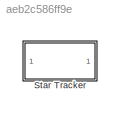
MODEL slx_aeb2c586ff9e
KIND library
CONFIG AbsTol = auto
CONFIG FixedStep = auto
CONFIG MaxStep = auto
CONFIG MinStep = auto
CONFIG RelTol = 1e-3
CONFIG SampleTimeConstraint = Unconstrained
CONFIG Solver = VariableStepAuto
CONFIG SolverMode = Auto
CONFIG SolverName = VariableStepAuto
CONFIG StartTime = 0.0
CONFIG StopTime = 10.0
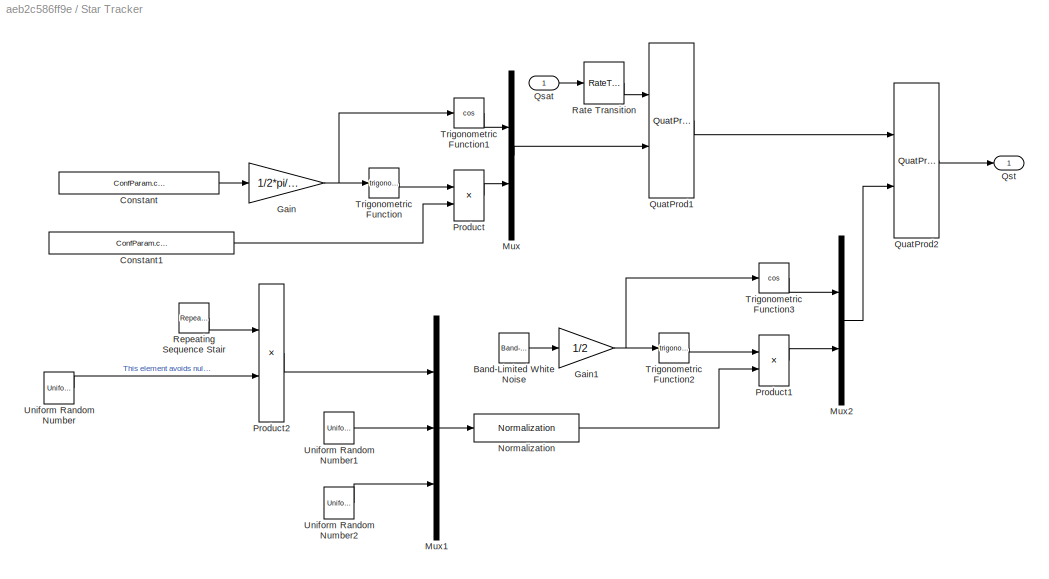
BLOCK [SubSystem] Star Tracker
  Ports = [1, 1]
  RequestExecContextInheritance = off
BLOCK [Reference] Star Tracker/Band-Limited White Noise  REF=simulink/Sources/Band-Limited
White Noise
  Cov = ConfParam.confStarTracker.NoisePower
  Ports = [0, 1]
  SourceBlock = simulink/Sources/Band-Limited\nWhite Noise
  SourceType = Band-Limited White Noise.
  Ts = 1/ConfParam.confStarTracker.frequency
  VectorParams1D = on
  seed = [23341]
BLOCK [Constant] Star Tracker/Constant
  SampleTime = 1/ConfParam.confStarTracker.frequency
  Value = ConfParam.confStarTracker.Bias
BLOCK [Constant] Star Tracker/Constant1
  SampleTime = 1/ConfParam.confStarTracker.frequency
  Value = ConfParam.confStarTracker.direction
BLOCK [Gain] Star Tracker/Gain
  Gain = 1/2*pi/180
  OutDataTypeStr = Inherit: Inherit via internal rule
  ParamDataTypeStr = Inherit: Inherit via internal rule
  SaturateOnIntegerOverflow = off
BLOCK [Gain] Star Tracker/Gain1
  Gain = 1/2
  OutDataTypeStr = Inherit: Inherit via internal rule
  ParamDataTypeStr = Inherit: Inherit via internal rule
  SaturateOnIntegerOverflow = off
BLOCK [Mux] Star Tracker/Mux
  DisplayOption = bar
  Inputs = 2
  Ports = [2, 1]
BLOCK [Mux] Star Tracker/Mux1
  DisplayOption = bar
  Inputs = 3
  Ports = [3, 1]
BLOCK [Mux] Star Tracker/Mux2
  DisplayOption = bar
  Inputs = 2
  Ports = [2, 1]
BLOCK [Reference] Star Tracker/Normalization  REF=Normalization/Normalization
  Ports = [1, 1]
  SourceBlock = Normalization/Normalization
  SourceType = SubSystem
BLOCK [Product] Star Tracker/Product
  InputSameDT = off
  OutDataTypeStr = Inherit: Inherit via internal rule
  Ports = [2, 1]
  RndMeth = Floor
  SaturateOnIntegerOverflow = off
BLOCK [Product] Star Tracker/Product1
  InputSameDT = off
  OutDataTypeStr = Inherit: Inherit via internal rule
  Ports = [2, 1]
  RndMeth = Floor
  SaturateOnIntegerOverflow = off
BLOCK [Product] Star Tracker/Product2
  InputSameDT = off
  OutDataTypeStr = Inherit: Inherit via internal rule
  Ports = [2, 1]
  RndMeth = Floor
  SaturateOnIntegerOverflow = off
BLOCK [Inport] Star Tracker/Qsat
  IconDisplay = Port number
BLOCK [Outport] Star Tracker/Qst
  IconDisplay = Port number
BLOCK [Reference] Star Tracker/QuatProd1  REF=Qprod/QuatProd1
  Ports = [2, 1]
  SourceBlock = Qprod/QuatProd1
  SourceType = SubSystem
BLOCK [Reference] Star Tracker/QuatProd2  REF=Qprod/QuatProd1
  Ports = [2, 1]
  SourceBlock = Qprod/QuatProd1
  SourceType = SubSystem
BLOCK [RateTransition] Star Tracker/Rate Transition
  OutPortSampleTime = 1/ConfParam.confStarTracker.frequency
  X0 = ConfParam.confStarTracker.InitQsat
BLOCK [Reference] Star Tracker/Repeating Sequence Stair  REF=simulink/Sources/Repeating
Sequence
Stair
  ConRadixGroup = Best Precision: Vector-wise
  LockScale = off
  OutDataType = fixdt(0,8)
  OutDataTypeStr = double
  OutMax = []
  OutMin = []
  OutScaling = 2^-12
  OutValues = [1 -1].'
  OutputDataTypeScalingMode = double
  Ports = [0, 1]
  SourceBlock = simulink/Sources/Repeating\nSequence\nStair
  SourceType = Repeating Sequence Stair
  tsamp = 1/ConfParam.confStarTracker.frequency
BLOCK [Trigonometry] Star Tracker/Trigonometric Function
  Ports = [1, 1]
BLOCK [Trigonometry] Star Tracker/Trigonometric Function1
  Operator = cos
  Ports = [1, 1]
BLOCK [Trigonometry] Star Tracker/Trigonometric Function2
  Ports = [1, 1]
BLOCK [Trigonometry] Star Tracker/Trigonometric Function3
  Operator = cos
  Ports = [1, 1]
BLOCK [UniformRandomNumber] Star Tracker/Uniform Random Number
  Maximum = 1.001
  Minimum = 0.001
  SampleTime = 1/ConfParam.confStarTracker.frequency
BLOCK [UniformRandomNumber] Star Tracker/Uniform Random Number1
  SampleTime = 1/ConfParam.confStarTracker.frequency
BLOCK [UniformRandomNumber] Star Tracker/Uniform Random Number2
  SampleTime = 1/ConfParam.confStarTracker.frequency
LINE Star Tracker/Band-Limited White Noise:1 -> Star Tracker/Gain1:1
LINE Star Tracker/Constant1:1 -> Star Tracker/Product:2
LINE Star Tracker/Constant:1 -> Star Tracker/Gain:1
NET Star Tracker/Gain1:1 -> Star Tracker/Trigonometric Function2:1, Star Tracker/Trigonometric Function3:1
NET Star Tracker/Gain:1 -> Star Tracker/Trigonometric Function1:1, Star Tracker/Trigonometric Function:1
LINE Star Tracker/Mux1:1 -> Star Tracker/Normalization:1
LINE Star Tracker/Mux2:1 -> Star Tracker/QuatProd2:2
LINE Star Tracker/Mux:1 -> Star Tracker/QuatProd1:2
LINE Star Tracker/Normalization:1 -> Star Tracker/Product1:2
LINE Star Tracker/Product1:1 -> Star Tracker/Mux2:2
LINE Star Tracker/Product2:1 -> Star Tracker/Mux1:1
LINE Star Tracker/Product:1 -> Star Tracker/Mux:2
LINE Star Tracker/Qsat:1 -> Star Tracker/Rate Transition:1
LINE Star Tracker/QuatProd1:1 -> Star Tracker/QuatProd2:1
LINE Star Tracker/QuatProd2:1 -> Star Tracker/Qst:1
LINE Star Tracker/Rate Transition:1 -> Star Tracker/QuatProd1:1
LINE Star Tracker/Repeating Sequence Stair:1 -> Star Tracker/Product2:1
LINE Star Tracker/Trigonometric Function1:1 -> Star Tracker/Mux:1
LINE Star Tracker/Trigonometric Function2:1 -> Star Tracker/Product1:1
LINE Star Tracker/Trigonometric Function3:1 -> Star Tracker/Mux2:1
LINE Star Tracker/Trigonometric Function:1 -> Star Tracker/Product:1
LINE Star Tracker/Uniform Random Number1:1 -> Star Tracker/Mux1:2
LINE Star Tracker/Uniform Random Number2:1 -> Star Tracker/Mux1:3
LINE Star Tracker/Uniform Random Number:1 -> Star Tracker/Product2:2
note: NET lines group one-source signal fan-out (src -> all destinations, sorted); 1:1 wires keep LINE
